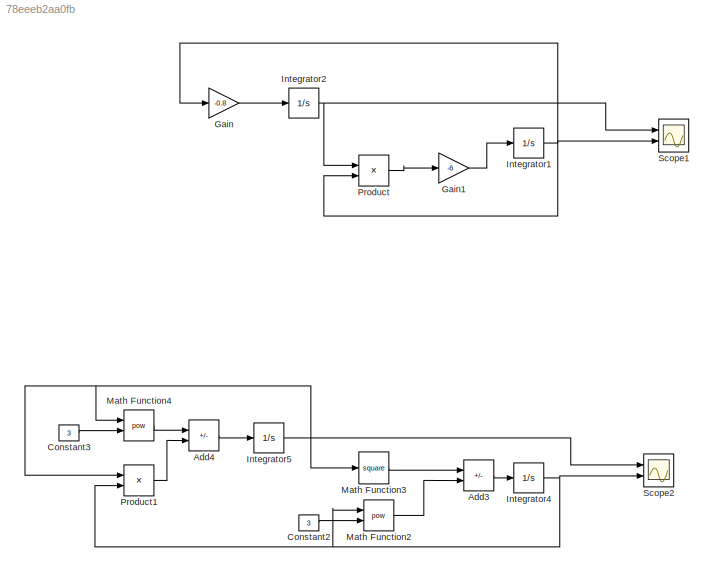
MODEL slx_78eeeb2aa0fb
KIND model
CONFIG AbsTol = auto
CONFIG EnableMultiTasking = off
CONFIG FixedStep = 0.01
CONFIG MaxStep = auto
CONFIG MinStep = auto
CONFIG RelTol = 1e-3
CONFIG SampleTimeConstraint = Unconstrained
CONFIG SolverName = FixedStepAuto
CONFIG StartTime = 0.0
CONFIG StopTime = 5
BLOCK [Sum] Add3
  IconShape = rectangular
  Inputs = --
  Ports = [2, 1]
BLOCK [Sum] Add4
  IconShape = rectangular
  Inputs = -+
  Ports = [2, 1]
BLOCK [Constant] Constant2
  Value = 3
BLOCK [Constant] Constant3
  Value = 3
BLOCK [Gain] Gain
  Gain = -0.8
BLOCK [Gain] Gain1
  Gain = -6
BLOCK [Integrator] Integrator1
  InitialCondition = 2
  Ports = [1, 1]
BLOCK [Integrator] Integrator2
  InitialCondition = 2
  Ports = [1, 1]
BLOCK [Integrator] Integrator4
  InitialCondition = 1
  Ports = [1, 1]
BLOCK [Integrator] Integrator5
  InitialCondition = 1
  Ports = [1, 1]
BLOCK [Math] Math Function2
  Operator = pow
  Ports = [2, 1]
BLOCK [Math] Math Function3
  Operator = square
  Ports = [1, 1]
BLOCK [Math] Math Function4
  Operator = pow
  Ports = [2, 1]
BLOCK [Product] Product
  Ports = [2, 1]
BLOCK [Product] Product1
  Ports = [2, 1]
BLOCK [Scope] Scope1
  Floating = off
  NumInputPorts = 2
  Ports = [2]
  ScopeSpecificationString = Simulink.scopes.TimeScopeBlockCfg('CurrentConfiguration', extmgr.ConfigurationSet(extmgr.Configuration('Core','General UI',true,'FigureColor',[1 1 1]),extmgr.Configuration('Core','Source UI',true),extmgr.Configuration('Sources','WiredSimulink',true),extmgr.Configuration('Visuals','Time Domain',true,'SerializedDisplays',{struct('MinYLimReal','1.84464','MaxYLimReal','2.01726','YLabelReal','','MinYLi...<+2289ch>
BLOCK [Scope] Scope2
  Floating = off
  NumInputPorts = 2
  Ports = [2]
  ScopeSpecificationString = Simulink.scopes.TimeScopeBlockCfg('CurrentConfiguration', extmgr.ConfigurationSet(extmgr.Configuration('Core','General UI',true,'FigureColor',[1 1 1]),extmgr.Configuration('Core','Source UI',true),extmgr.Configuration('Sources','WiredSimulink',true,'DataLoggingVariableName','ScopeData1'),extmgr.Configuration('Visuals','Time Domain',true,'SerializedDisplays',{struct('MinYLimReal','0.01803','MaxYLim...<+2300ch>
LINE Add3:1 -> Integrator4:1
LINE Add4:1 -> Integrator5:1
LINE Constant2:1 -> Math Function2:2
LINE Constant3:1 -> Math Function4:2
LINE Gain1:1 -> Integrator1:1
LINE Gain:1 -> Integrator2:1
NET Integrator1:1 -> Gain:1, Product:2, Scope1:2
NET Integrator2:1 -> Product:1, Scope1:1
NET Integrator4:1 -> Math Function2:1, Product1:2, Scope2:2
NET Integrator5:1 -> Math Function3:1, Math Function4:1, Product1:1, Scope2:1
LINE Math Function2:1 -> Add3:2
LINE Math Function3:1 -> Add3:1
LINE Math Function4:1 -> Add4:1
LINE Product1:1 -> Add4:2
LINE Product:1 -> Gain1:1
note: NET lines group one-source signal fan-out (src -> all destinations, sorted); 1:1 wires keep LINE
